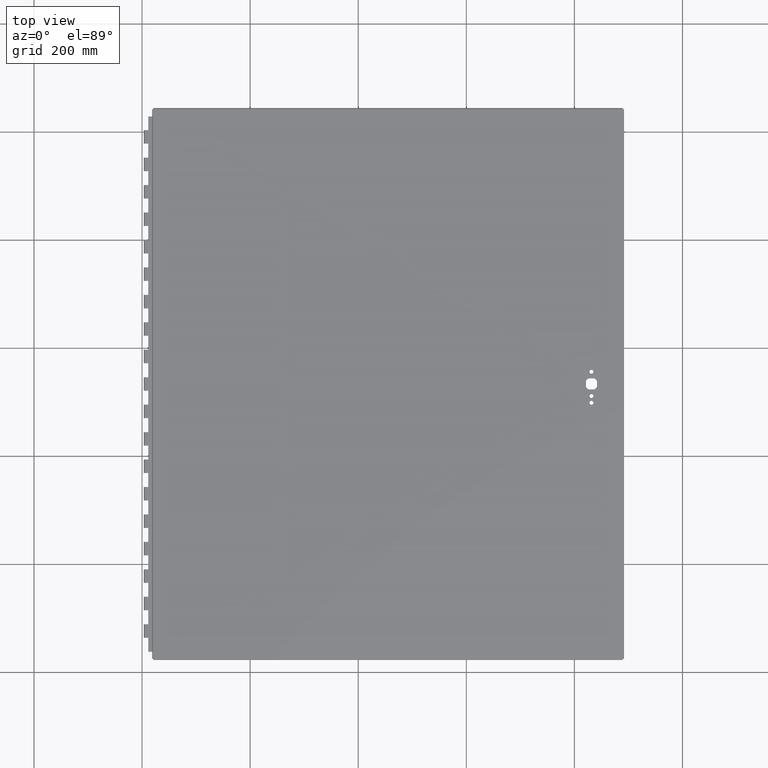
[diagram: clean part render]
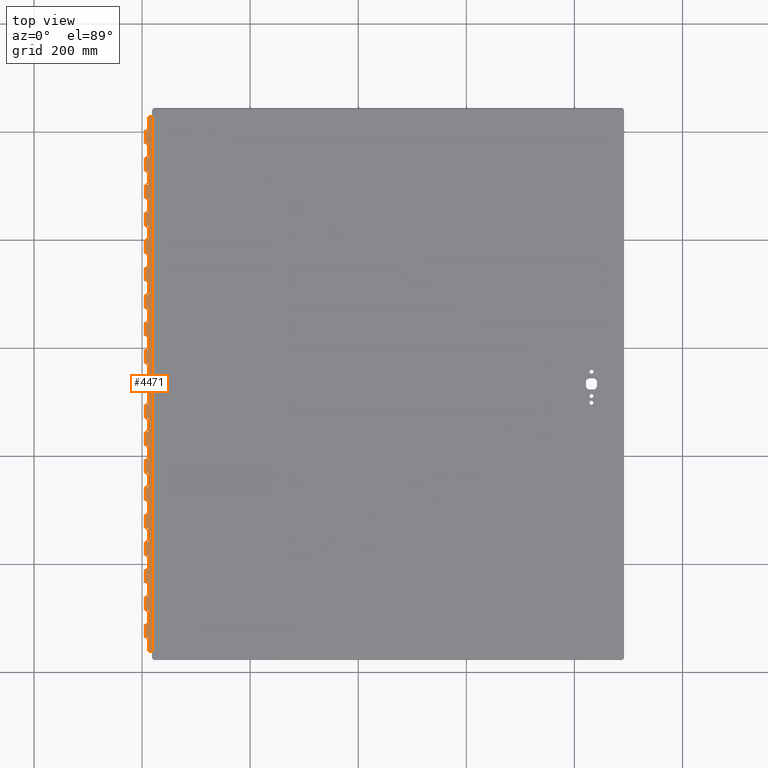
[diagram: same view with one face highlighted and labeled with its STEP entity id]
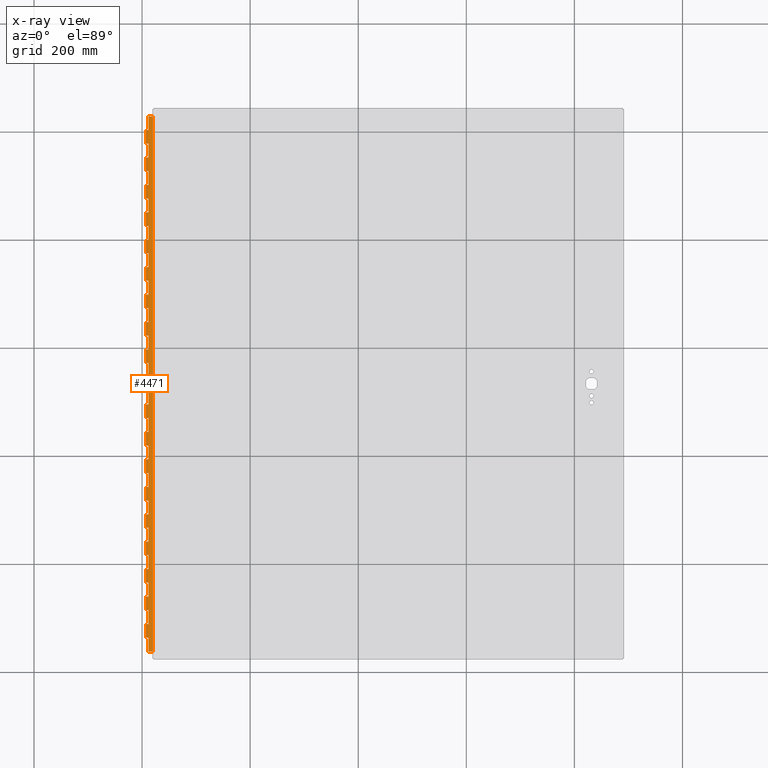
[diagram: x-ray of the same camera — body ghosted, the highlighted face saturated]
A machine part, top view. The second image highlights one B-rep face of the part: STEP entity #4471.
The next image is the same camera in x-ray: the body ghosted, the highlighted face saturated — about 0% of this face is hidden behind the body in this view.
In plain terms, the highlighted planar face has unit normal (0.0872, -0, 0.9962).
Its self-contained STEP definition (entity closure, byte-faithful):
#482=PLANE('',#4898);
#651=FACE_OUTER_BOUND('',#888,.T.);
#888=EDGE_LOOP('',(#3760,#3761,#3762,#3763,#3764,#3765,#3766,#3767,#3768,
#3769,#3770,#3771,#3772,#3773,#3774,#3775,#3776,#3777,#3778,#3779,#3780,
#3781,#3782,#3783,#3784,#3785,#3786,#3787,#3788,#3789,#3790,#3791,#3792,
#3793,#3794,#3795,#3796,#3797,#3798,#3799,#3800,#3801,#3802,#3803,#3804,
#3805,#3806,#3807,#3808,#3809,#3810,#3811,#3812,#3813,#3814,#3815,#3816,
#3817,#3818,#3819,#3820,#3821,#3822,#3823,#3824,#3825,#3826,#3827,#3828,
#3829,#3830,#3831,#3832,#3833,#3834,#3835,#3836,#3837,#3838,#3839));
#1088=LINE('',#6931,#1544);
#1095=LINE('',#6948,#1551);
#1096=LINE('',#6954,#1552);
#1102=LINE('',#6970,#1558);
#1107=LINE('',#6985,#1563);
#1108=LINE('',#6991,#1564);
#1114=LINE('',#7007,#1570);
#1119=LINE('',#7022,#1575);
#1120=LINE('',#7028,#1576);
#1126=LINE('',#7044,#1582);
#1131=LINE('',#7059,#1587);
#1132=LINE('',#7065,#1588);
#1138=LINE('',#7081,#1594);
#1143=LINE('',#7096,#1599);
#1144=LINE('',#7102,#1600);
#1150=LINE('',#7118,#1606);
#1155=LINE('',#7133,#1611);
#1156=LINE('',#7139,#1612);
#1162=LINE('',#7155,#1618);
#1167=LINE('',#7170,#1623);
#1168=LINE('',#7176,#1624);
#1174=LINE('',#7192,#1630);
#1179=LINE('',#7207,#1635);
#1180=LINE('',#7213,#1636);
#1186=LINE('',#7229,#1642);
#1191=LINE('',#7244,#1647);
#1192=LINE('',#7250,#1648);
#1198=LINE('',#7266,#1654);
#1203=LINE('',#7281,#1659);
#1204=LINE('',#7287,#1660);
#1210=LINE('',#7303,#1666);
#1215=LINE('',#7318,#1671);
#1216=LINE('',#7324,#1672);
#1222=LINE('',#7340,#1678);
#1227=LINE('',#7355,#1683);
#1228=LINE('',#7361,#1684);
#1234=LINE('',#7377,#1690);
#1239=LINE('',#7392,#1695);
#1240=LINE('',#7398,#1696);
#1246=LINE('',#7414,#1702);
#1251=LINE('',#7429,#1707);
#1252=LINE('',#7435,#1708);
#1258=LINE('',#7451,#1714);
#1263=LINE('',#7466,#1719);
#1264=LINE('',#7472,#1720);
#1270=LINE('',#7488,#1726);
#1275=LINE('',#7503,#1731);
#1276=LINE('',#7509,#1732);
#1282=LINE('',#7525,#1738);
#1287=LINE('',#7540,#1743);
#1288=LINE('',#7546,#1744);
#1294=LINE('',#7562,#1750);
#1299=LINE('',#7577,#1755);
#1300=LINE('',#7583,#1756);
#1306=LINE('',#7599,#1762);
#1311=LINE('',#7614,#1767);
#1312=LINE('',#7616,#1768);
#1313=LINE('',#7617,#1769);
#1314=LINE('',#7618,#1770);
#1315=LINE('',#7619,#1771);
#1316=LINE('',#7620,#1772);
#1317=LINE('',#7621,#1773);
#1318=LINE('',#7622,#1774);
#1319=LINE('',#7623,#1775);
#1320=LINE('',#7624,#1776);
#1321=LINE('',#7625,#1777);
#1322=LINE('',#7626,#1778);
#1323=LINE('',#7627,#1779);
#1324=LINE('',#7628,#1780);
#1325=LINE('',#7629,#1781);
#1326=LINE('',#7630,#1782);
#1327=LINE('',#7631,#1783);
#1328=LINE('',#7632,#1784);
#1329=LINE('',#7633,#1785);
#1330=LINE('',#7635,#1786);
#1331=LINE('',#7637,#1787);
#1332=LINE('',#7639,#1788);
#1333=LINE('',#7641,#1789);
#1334=LINE('',#7643,#1790);
#1335=LINE('',#7644,#1791);
#1544=VECTOR('',#5289,0.393700787401575);
#1551=VECTOR('',#5302,0.393700787401575);
#1552=VECTOR('',#5307,0.393700787401575);
#1558=VECTOR('',#5319,0.393700787401575);
#1563=VECTOR('',#5332,0.393700787401575);
#1564=VECTOR('',#5337,0.393700787401575);
#1570=VECTOR('',#5349,0.393700787401575);
#1575=VECTOR('',#5362,0.393700787401575);
#1576=VECTOR('',#5367,0.393700787401575);
#1582=VECTOR('',#5379,0.393700787401575);
#1587=VECTOR('',#5392,0.393700787401575);
#1588=VECTOR('',#5397,0.393700787401575);
#1594=VECTOR('',#5409,0.393700787401575);
#1599=VECTOR('',#5422,0.393700787401575);
#1600=VECTOR('',#5427,0.393700787401575);
#1606=VECTOR('',#5439,0.393700787401575);
#1611=VECTOR('',#5452,0.393700787401575);
#1612=VECTOR('',#5457,0.393700787401575);
#1618=VECTOR('',#5469,0.393700787401575);
#1623=VECTOR('',#5482,0.393700787401575);
#1624=VECTOR('',#5487,0.393700787401575);
#1630=VECTOR('',#5499,0.393700787401575);
#1635=VECTOR('',#5512,0.393700787401575);
#1636=VECTOR('',#5517,0.393700787401575);
#1642=VECTOR('',#5529,0.393700787401575);
#1647=VECTOR('',#5542,0.393700787401575);
#1648=VECTOR('',#5547,0.393700787401575);
#1654=VECTOR('',#5559,0.393700787401575);
#1659=VECTOR('',#5572,0.393700787401575);
#1660=VECTOR('',#5577,0.393700787401575);
#1666=VECTOR('',#5589,0.393700787401575);
#1671=VECTOR('',#5602,0.393700787401575);
#1672=VECTOR('',#5607,0.393700787401575);
#1678=VECTOR('',#5619,0.393700787401575);
#1683=VECTOR('',#5632,0.393700787401575);
#1684=VECTOR('',#5637,0.393700787401575);
#1690=VECTOR('',#5649,0.393700787401575);
#1695=VECTOR('',#5662,0.393700787401575);
#1696=VECTOR('',#5667,0.393700787401575);
#1702=VECTOR('',#5679,0.393700787401575);
#1707=VECTOR('',#5692,0.393700787401575);
#1708=VECTOR('',#5697,0.393700787401575);
#1714=VECTOR('',#5709,0.393700787401575);
#1719=VECTOR('',#5722,0.393700787401575);
#1720=VECTOR('',#5727,0.393700787401575);
#1726=VECTOR('',#5739,0.393700787401575);
#1731=VECTOR('',#5752,0.393700787401575);
#1732=VECTOR('',#5757,0.393700787401575);
#1738=VECTOR('',#5769,0.393700787401575);
#1743=VECTOR('',#5782,0.393700787401575);
#1744=VECTOR('',#5787,0.393700787401575);
#1750=VECTOR('',#5799,0.393700787401575);
#1755=VECTOR('',#5812,0.393700787401575);
#1756=VECTOR('',#5817,0.393700787401575);
#1762=VECTOR('',#5829,0.393700787401575);
#1767=VECTOR('',#5842,0.393700787401575);
#1768=VECTOR('',#5845,0.393700787401575);
#1769=VECTOR('',#5846,0.393700787401575);
#1770=VECTOR('',#5847,0.393700787401575);
#1771=VECTOR('',#5848,0.393700787401575);
#1772=VECTOR('',#5849,0.393700787401575);
#1773=VECTOR('',#5850,0.393700787401575);
#1774=VECTOR('',#5851,0.393700787401575);
#1775=VECTOR('',#5852,0.393700787401575);
#1776=VECTOR('',#5853,0.393700787401575);
#1777=VECTOR('',#5854,0.393700787401575);
#1778=VECTOR('',#5855,0.393700787401575);
#1779=VECTOR('',#5856,0.393700787401575);
#1780=VECTOR('',#5857,0.393700787401575);
#1781=VECTOR('',#5858,0.393700787401575);
#1782=VECTOR('',#5859,0.393700787401575);
#1783=VECTOR('',#5860,0.393700787401575);
#1784=VECTOR('',#5861,0.393700787401575);
#1785=VECTOR('',#5862,0.393700787401575);
#1786=VECTOR('',#5863,0.393700787401575);
#1787=VECTOR('',#5864,0.393700787401575);
#1788=VECTOR('',#5865,0.393700787401575);
#1789=VECTOR('',#5866,0.393700787401575);
#1790=VECTOR('',#5867,0.393700787401575);
#1791=VECTOR('',#5868,0.393700787401575);
#2141=VERTEX_POINT('',#6927);
#2143=VERTEX_POINT('',#6930);
#2150=VERTEX_POINT('',#6945);
#2151=VERTEX_POINT('',#6950);
#2153=VERTEX_POINT('',#6953);
#2160=VERTEX_POINT('',#6969);
#2162=VERTEX_POINT('',#6974);
#2167=VERTEX_POINT('',#6987);
#2169=VERTEX_POINT('',#6990);
#2176=VERTEX_POINT('',#7006);
#2178=VERTEX_POINT('',#7011);
#2183=VERTEX_POINT('',#7024);
#2185=VERTEX_POINT('',#7027);
#2192=VERTEX_POINT('',#7043);
#2194=VERTEX_POINT('',#7048);
#2199=VERTEX_POINT('',#7061);
#2201=VERTEX_POINT('',#7064);
#2208=VERTEX_POINT('',#7080);
#2210=VERTEX_POINT('',#7085);
#2215=VERTEX_POINT('',#7098);
#2217=VERTEX_POINT('',#7101);
#2224=VERTEX_POINT('',#7117);
#2226=VERTEX_POINT('',#7122);
#2231=VERTEX_POINT('',#7135);
#2233=VERTEX_POINT('',#7138);
#2240=VERTEX_POINT('',#7154);
#2242=VERTEX_POINT('',#7159);
#2247=VERTEX_POINT('',#7172);
#2249=VERTEX_POINT('',#7175);
#2256=VERTEX_POINT('',#7191);
#2258=VERTEX_POINT('',#7196);
#2263=VERTEX_POINT('',#7209);
#2265=VERTEX_POINT('',#7212);
#2272=VERTEX_POINT('',#7228);
#2274=VERTEX_POINT('',#7233);
#2279=VERTEX_POINT('',#7246);
#2281=VERTEX_POINT('',#7249);
#2288=VERTEX_POINT('',#7265);
#2290=VERTEX_POINT('',#7270);
#2295=VERTEX_POINT('',#7283);
#2297=VERTEX_POINT('',#7286);
#2304=VERTEX_POINT('',#7302);
#2306=VERTEX_POINT('',#7307);
#2311=VERTEX_POINT('',#7320);
#2313=VERTEX_POINT('',#7323);
#2320=VERTEX_POINT('',#7339);
#2322=VERTEX_POINT('',#7344);
#2327=VERTEX_POINT('',#7357);
#2329=VERTEX_POINT('',#7360);
#2336=VERTEX_POINT('',#7376);
#2338=VERTEX_POINT('',#7381);
#2343=VERTEX_POINT('',#7394);
#2345=VERTEX_POINT('',#7397);
#2352=VERTEX_POINT('',#7413);
#2354=VERTEX_POINT('',#7418);
#2359=VERTEX_POINT('',#7431);
#2361=VERTEX_POINT('',#7434);
#2368=VERTEX_POINT('',#7450);
#2370=VERTEX_POINT('',#7455);
#2375=VERTEX_POINT('',#7468);
#2377=VERTEX_POINT('',#7471);
#2384=VERTEX_POINT('',#7487);
#2386=VERTEX_POINT('',#7492);
#2391=VERTEX_POINT('',#7505);
#2393=VERTEX_POINT('',#7508);
#2400=VERTEX_POINT('',#7524);
#2402=VERTEX_POINT('',#7529);
#2407=VERTEX_POINT('',#7542);
#2409=VERTEX_POINT('',#7545);
#2416=VERTEX_POINT('',#7561);
#2418=VERTEX_POINT('',#7566);
#2423=VERTEX_POINT('',#7579);
#2425=VERTEX_POINT('',#7582);
#2432=VERTEX_POINT('',#7598);
#2434=VERTEX_POINT('',#7603);
#2439=VERTEX_POINT('',#7634);
#2440=VERTEX_POINT('',#7636);
#2441=VERTEX_POINT('',#7638);
#2442=VERTEX_POINT('',#7640);
#2443=VERTEX_POINT('',#7642);
#2611=EDGE_CURVE('',#2143,#2141,#1088,.T.);
#2620=EDGE_CURVE('',#2150,#2143,#1095,.T.);
#2622=EDGE_CURVE('',#2153,#2151,#1096,.T.);
#2630=EDGE_CURVE('',#2160,#2153,#1102,.T.);
#2638=EDGE_CURVE('',#2162,#2160,#1107,.T.);
#2640=EDGE_CURVE('',#2169,#2167,#1108,.T.);
#2648=EDGE_CURVE('',#2176,#2169,#1114,.T.);
#2656=EDGE_CURVE('',#2178,#2176,#1119,.T.);
#2658=EDGE_CURVE('',#2185,#2183,#1120,.T.);
#2666=EDGE_CURVE('',#2192,#2185,#1126,.T.);
#2674=EDGE_CURVE('',#2194,#2192,#1131,.T.);
#2676=EDGE_CURVE('',#2201,#2199,#1132,.T.);
#2684=EDGE_CURVE('',#2208,#2201,#1138,.T.);
#2692=EDGE_CURVE('',#2210,#2208,#1143,.T.);
#2694=EDGE_CURVE('',#2217,#2215,#1144,.T.);
#2702=EDGE_CURVE('',#2224,#2217,#1150,.T.);
#2710=EDGE_CURVE('',#2226,#2224,#1155,.T.);
#2712=EDGE_CURVE('',#2233,#2231,#1156,.T.);
#2720=EDGE_CURVE('',#2240,#2233,#1162,.T.);
#2728=EDGE_CURVE('',#2242,#2240,#1167,.T.);
#2730=EDGE_CURVE('',#2249,#2247,#1168,.T.);
#2738=EDGE_CURVE('',#2256,#2249,#1174,.T.);
#2746=EDGE_CURVE('',#2258,#2256,#1179,.T.);
#2748=EDGE_CURVE('',#2265,#2263,#1180,.T.);
#2756=EDGE_CURVE('',#2272,#2265,#1186,.T.);
#2764=EDGE_CURVE('',#2274,#2272,#1191,.T.);
#2766=EDGE_CURVE('',#2281,#2279,#1192,.T.);
#2774=EDGE_CURVE('',#2288,#2281,#1198,.T.);
#2782=EDGE_CURVE('',#2290,#2288,#1203,.T.);
#2784=EDGE_CURVE('',#2297,#2295,#1204,.T.);
#2792=EDGE_CURVE('',#2304,#2297,#1210,.T.);
#2800=EDGE_CURVE('',#2306,#2304,#1215,.T.);
#2802=EDGE_CURVE('',#2313,#2311,#1216,.T.);
#2810=EDGE_CURVE('',#2320,#2313,#1222,.T.);
#2818=EDGE_CURVE('',#2322,#2320,#1227,.T.);
#2820=EDGE_CURVE('',#2329,#2327,#1228,.T.);
#2828=EDGE_CURVE('',#2336,#2329,#1234,.T.);
#2836=EDGE_CURVE('',#2338,#2336,#1239,.T.);
#2838=EDGE_CURVE('',#2345,#2343,#1240,.T.);
#2846=EDGE_CURVE('',#2352,#2345,#1246,.T.);
#2854=EDGE_CURVE('',#2354,#2352,#1251,.T.);
#2856=EDGE_CURVE('',#2361,#2359,#1252,.T.);
#2864=EDGE_CURVE('',#2368,#2361,#1258,.T.);
#2872=EDGE_CURVE('',#2370,#2368,#1263,.T.);
#2874=EDGE_CURVE('',#2377,#2375,#1264,.T.);
#2882=EDGE_CURVE('',#2384,#2377,#1270,.T.);
#2890=EDGE_CURVE('',#2386,#2384,#1275,.T.);
#2892=EDGE_CURVE('',#2393,#2391,#1276,.T.);
#2900=EDGE_CURVE('',#2400,#2393,#1282,.T.);
#2908=EDGE_CURVE('',#2402,#2400,#1287,.T.);
#2910=EDGE_CURVE('',#2409,#2407,#1288,.T.);
#2918=EDGE_CURVE('',#2416,#2409,#1294,.T.);
#2926=EDGE_CURVE('',#2418,#2416,#1299,.T.);
#2928=EDGE_CURVE('',#2425,#2423,#1300,.T.);
#2936=EDGE_CURVE('',#2432,#2425,#1306,.T.);
#2944=EDGE_CURVE('',#2434,#2432,#1311,.T.);
#2945=EDGE_CURVE('',#2141,#2162,#1312,.T.);
#2946=EDGE_CURVE('',#2151,#2178,#1313,.T.);
#2947=EDGE_CURVE('',#2167,#2194,#1314,.T.);
#2948=EDGE_CURVE('',#2183,#2210,#1315,.T.);
#2949=EDGE_CURVE('',#2199,#2226,#1316,.T.);
#2950=EDGE_CURVE('',#2215,#2242,#1317,.T.);
#2951=EDGE_CURVE('',#2231,#2258,#1318,.T.);
#2952=EDGE_CURVE('',#2247,#2274,#1319,.T.);
#2953=EDGE_CURVE('',#2263,#2290,#1320,.T.);
#2954=EDGE_CURVE('',#2279,#2306,#1321,.T.);
#2955=EDGE_CURVE('',#2295,#2322,#1322,.T.);
#2956=EDGE_CURVE('',#2311,#2338,#1323,.T.);
#2957=EDGE_CURVE('',#2327,#2354,#1324,.T.);
#2958=EDGE_CURVE('',#2343,#2370,#1325,.T.);
#2959=EDGE_CURVE('',#2359,#2386,#1326,.T.);
#2960=EDGE_CURVE('',#2375,#2402,#1327,.T.);
#2961=EDGE_CURVE('',#2391,#2418,#1328,.T.);
#2962=EDGE_CURVE('',#2407,#2434,#1329,.T.);
#2963=EDGE_CURVE('',#2423,#2439,#1330,.T.);
#2964=EDGE_CURVE('',#2439,#2440,#1331,.T.);
#2965=EDGE_CURVE('',#2440,#2441,#1332,.T.);
#2966=EDGE_CURVE('',#2441,#2442,#1333,.T.);
#2967=EDGE_CURVE('',#2443,#2442,#1334,.T.);
#2968=EDGE_CURVE('',#2443,#2150,#1335,.T.);
#3760=ORIENTED_EDGE('',*,*,#2620,.T.);
#3761=ORIENTED_EDGE('',*,*,#2611,.T.);
#3762=ORIENTED_EDGE('',*,*,#2945,.T.);
#3763=ORIENTED_EDGE('',*,*,#2638,.T.);
#3764=ORIENTED_EDGE('',*,*,#2630,.T.);
#3765=ORIENTED_EDGE('',*,*,#2622,.T.);
#3766=ORIENTED_EDGE('',*,*,#2946,.T.);
#3767=ORIENTED_EDGE('',*,*,#2656,.T.);
#3768=ORIENTED_EDGE('',*,*,#2648,.T.);
#3769=ORIENTED_EDGE('',*,*,#2640,.T.);
#3770=ORIENTED_EDGE('',*,*,#2947,.T.);
#3771=ORIENTED_EDGE('',*,*,#2674,.T.);
#3772=ORIENTED_EDGE('',*,*,#2666,.T.);
#3773=ORIENTED_EDGE('',*,*,#2658,.T.);
#3774=ORIENTED_EDGE('',*,*,#2948,.T.);
#3775=ORIENTED_EDGE('',*,*,#2692,.T.);
#3776=ORIENTED_EDGE('',*,*,#2684,.T.);
#3777=ORIENTED_EDGE('',*,*,#2676,.T.);
#3778=ORIENTED_EDGE('',*,*,#2949,.T.);
#3779=ORIENTED_EDGE('',*,*,#2710,.T.);
#3780=ORIENTED_EDGE('',*,*,#2702,.T.);
#3781=ORIENTED_EDGE('',*,*,#2694,.T.);
#3782=ORIENTED_EDGE('',*,*,#2950,.T.);
#3783=ORIENTED_EDGE('',*,*,#2728,.T.);
#3784=ORIENTED_EDGE('',*,*,#2720,.T.);
#3785=ORIENTED_EDGE('',*,*,#2712,.T.);
#3786=ORIENTED_EDGE('',*,*,#2951,.T.);
#3787=ORIENTED_EDGE('',*,*,#2746,.T.);
#3788=ORIENTED_EDGE('',*,*,#2738,.T.);
#3789=ORIENTED_EDGE('',*,*,#2730,.T.);
#3790=ORIENTED_EDGE('',*,*,#2952,.T.);
#3791=ORIENTED_EDGE('',*,*,#2764,.T.);
#3792=ORIENTED_EDGE('',*,*,#2756,.T.);
#3793=ORIENTED_EDGE('',*,*,#2748,.T.);
#3794=ORIENTED_EDGE('',*,*,#2953,.T.);
#3795=ORIENTED_EDGE('',*,*,#2782,.T.);
#3796=ORIENTED_EDGE('',*,*,#2774,.T.);
#3797=ORIENTED_EDGE('',*,*,#2766,.T.);
#3798=ORIENTED_EDGE('',*,*,#2954,.T.);
#3799=ORIENTED_EDGE('',*,*,#2800,.T.);
#3800=ORIENTED_EDGE('',*,*,#2792,.T.);
#3801=ORIENTED_EDGE('',*,*,#2784,.T.);
#3802=ORIENTED_EDGE('',*,*,#2955,.T.);
#3803=ORIENTED_EDGE('',*,*,#2818,.T.);
#3804=ORIENTED_EDGE('',*,*,#2810,.T.);
#3805=ORIENTED_EDGE('',*,*,#2802,.T.);
#3806=ORIENTED_EDGE('',*,*,#2956,.T.);
#3807=ORIENTED_EDGE('',*,*,#2836,.T.);
#3808=ORIENTED_EDGE('',*,*,#2828,.T.);
#3809=ORIENTED_EDGE('',*,*,#2820,.T.);
#3810=ORIENTED_EDGE('',*,*,#2957,.T.);
#3811=ORIENTED_EDGE('',*,*,#2854,.T.);
#3812=ORIENTED_EDGE('',*,*,#2846,.T.);
#3813=ORIENTED_EDGE('',*,*,#2838,.T.);
#3814=ORIENTED_EDGE('',*,*,#2958,.T.);
#3815=ORIENTED_EDGE('',*,*,#2872,.T.);
#3816=ORIENTED_EDGE('',*,*,#2864,.T.);
#3817=ORIENTED_EDGE('',*,*,#2856,.T.);
#3818=ORIENTED_EDGE('',*,*,#2959,.T.);
#3819=ORIENTED_EDGE('',*,*,#2890,.T.);
#3820=ORIENTED_EDGE('',*,*,#2882,.T.);
#3821=ORIENTED_EDGE('',*,*,#2874,.T.);
#3822=ORIENTED_EDGE('',*,*,#2960,.T.);
#3823=ORIENTED_EDGE('',*,*,#2908,.T.);
#3824=ORIENTED_EDGE('',*,*,#2900,.T.);
#3825=ORIENTED_EDGE('',*,*,#2892,.T.);
#3826=ORIENTED_EDGE('',*,*,#2961,.T.);
#3827=ORIENTED_EDGE('',*,*,#2926,.T.);
#3828=ORIENTED_EDGE('',*,*,#2918,.T.);
#3829=ORIENTED_EDGE('',*,*,#2910,.T.);
#3830=ORIENTED_EDGE('',*,*,#2962,.T.);
#3831=ORIENTED_EDGE('',*,*,#2944,.T.);
#3832=ORIENTED_EDGE('',*,*,#2936,.T.);
#3833=ORIENTED_EDGE('',*,*,#2928,.T.);
#3834=ORIENTED_EDGE('',*,*,#2963,.T.);
#3835=ORIENTED_EDGE('',*,*,#2964,.T.);
#3836=ORIENTED_EDGE('',*,*,#2965,.T.);
#3837=ORIENTED_EDGE('',*,*,#2966,.T.);
#3838=ORIENTED_EDGE('',*,*,#2967,.F.);
#3839=ORIENTED_EDGE('',*,*,#2968,.T.);
#4471=ADVANCED_FACE('',(#651),#482,.T.);
#4898=AXIS2_PLACEMENT_3D('',#7615,#5843,#5844);
#5289=DIRECTION('',(1.,1.60772500402571E-16,-4.50612437282574E-30));
#5302=DIRECTION('',(0.,0.,1.));
#5307=DIRECTION('',(1.,1.60772500402571E-16,-4.50612437282574E-30));
#5319=DIRECTION('',(0.,0.,1.));
#5332=DIRECTION('',(-1.,-1.60772500402571E-16,4.50612437282575E-30));
#5337=DIRECTION('',(1.,1.60772500402571E-16,-4.50612437282574E-30));
#5349=DIRECTION('',(0.,0.,1.));
#5362=DIRECTION('',(-1.,-1.60772500402571E-16,4.50612437282575E-30));
#5367=DIRECTION('',(1.,1.60772500402571E-16,-4.50612437282574E-30));
#5379=DIRECTION('',(0.,0.,1.));
#5392=DIRECTION('',(-1.,-1.60772500402571E-16,4.50612437282575E-30));
#5397=DIRECTION('',(1.,1.60772500402571E-16,-4.50612437282574E-30));
#5409=DIRECTION('',(0.,0.,1.));
#5422=DIRECTION('',(-1.,-1.60772500402571E-16,4.50612437282575E-30));
#5427=DIRECTION('',(1.,1.60772500402571E-16,-4.50612437282574E-30));
#5439=DIRECTION('',(0.,0.,1.));
#5452=DIRECTION('',(-1.,-1.60772500402571E-16,4.50612437282575E-30));
#5457=DIRECTION('',(1.,1.60772500402571E-16,-4.50612437282574E-30));
#5469=DIRECTION('',(0.,0.,1.));
#5482=DIRECTION('',(-1.,-1.60772500402571E-16,4.50612437282575E-30));
#5487=DIRECTION('',(1.,1.60772500402571E-16,-4.50612437282574E-30));
#5499=DIRECTION('',(0.,0.,1.));
#5512=DIRECTION('',(-1.,-1.60772500402571E-16,4.50612437282575E-30));
#5517=DIRECTION('',(1.,1.60772500402571E-16,-4.50612437282574E-30));
#5529=DIRECTION('',(0.,0.,1.));
#5542=DIRECTION('',(-1.,-1.60772500402571E-16,4.50612437282575E-30));
#5547=DIRECTION('',(1.,1.60772500402571E-16,-4.50612437282574E-30));
#5559=DIRECTION('',(0.,0.,1.));
#5572=DIRECTION('',(-1.,-1.60772500402571E-16,4.50612437282575E-30));
#5577=DIRECTION('',(1.,1.60772500402571E-16,-4.50612437282574E-30));
#5589=DIRECTION('',(0.,0.,1.));
#5602=DIRECTION('',(-1.,-1.60772500402571E-16,4.50612437282575E-30));
#5607=DIRECTION('',(1.,1.60772500402571E-16,-4.50612437282574E-30));
#5619=DIRECTION('',(0.,0.,1.));
#5632=DIRECTION('',(-1.,-1.60772500402571E-16,4.50612437282575E-30));
#5637=DIRECTION('',(1.,1.60772500402571E-16,-4.50612437282574E-30));
#5649=DIRECTION('',(0.,0.,1.));
#5662=DIRECTION('',(-1.,-1.60772500402571E-16,4.50612437282575E-30));
#5667=DIRECTION('',(1.,1.60772500402571E-16,-4.50612437282574E-30));
#5679=DIRECTION('',(0.,0.,1.));
#5692=DIRECTION('',(-1.,-1.60772500402571E-16,4.50612437282575E-30));
#5697=DIRECTION('',(1.,1.60772500402571E-16,-4.50612437282574E-30));
#5709=DIRECTION('',(0.,0.,1.));
#5722=DIRECTION('',(-1.,-1.60772500402571E-16,4.50612437282575E-30));
#5727=DIRECTION('',(1.,1.60772500402571E-16,-4.50612437282574E-30));
#5739=DIRECTION('',(0.,0.,1.));
#5752=DIRECTION('',(-1.,-1.60772500402571E-16,4.50612437282575E-30));
#5757=DIRECTION('',(1.,1.60772500402571E-16,-4.50612437282574E-30));
#5769=DIRECTION('',(0.,0.,1.));
#5782=DIRECTION('',(-1.,-1.60772500402571E-16,4.50612437282575E-30));
#5787=DIRECTION('',(1.,1.60772500402571E-16,-4.50612437282574E-30));
#5799=DIRECTION('',(0.,0.,1.));
#5812=DIRECTION('',(-1.,-1.60772500402571E-16,4.50612437282575E-30));
#5817=DIRECTION('',(1.,1.60772500402571E-16,-4.50612437282574E-30));
#5829=DIRECTION('',(0.,0.,1.));
#5842=DIRECTION('',(-1.,-1.60772500402571E-16,4.50612437282575E-30));
#5843=DIRECTION('center_axis',(1.60772500402571E-16,-1.,0.));
#5844=DIRECTION('ref_axis',(0.,0.,-1.));
#5845=DIRECTION('',(0.,0.,1.));
#5846=DIRECTION('',(0.,0.,1.));
#5847=DIRECTION('',(0.,0.,1.));
#5848=DIRECTION('',(0.,0.,1.));
#5849=DIRECTION('',(0.,0.,1.));
#5850=DIRECTION('',(0.,0.,1.));
#5851=DIRECTION('',(0.,0.,1.));
#5852=DIRECTION('',(0.,0.,1.));
#5853=DIRECTION('',(0.,0.,1.));
#5854=DIRECTION('',(0.,0.,1.));
#5855=DIRECTION('',(0.,0.,1.));
#5856=DIRECTION('',(0.,0.,1.));
#5857=DIRECTION('',(0.,0.,1.));
#5858=DIRECTION('',(0.,0.,1.));
#5859=DIRECTION('',(0.,0.,1.));
#5860=DIRECTION('',(0.,0.,1.));
#5861=DIRECTION('',(0.,0.,1.));
#5862=DIRECTION('',(0.,0.,1.));
#5863=DIRECTION('',(0.,0.,1.));
#5864=DIRECTION('',(-1.,-1.60772500402571E-16,4.50612437282575E-30));
#5865=DIRECTION('',(0.,0.,1.));
#5866=DIRECTION('',(-1.,-1.60772500402571E-16,0.));
#5867=DIRECTION('',(0.,0.,1.));
#5868=DIRECTION('',(1.,1.60772500402571E-16,0.));
#6927=CARTESIAN_POINT('',(0.,-0.125,1.00000000000001));
#6930=CARTESIAN_POINT('',(-0.18,-0.125,1.00000000000001));
#6931=CARTESIAN_POINT('',(2.97816405903437E-17,-0.125,1.00000000000001));
#6945=CARTESIAN_POINT('',(-0.18,-0.125,0.));
#6948=CARTESIAN_POINT('',(-0.18,-0.125,0.500000000000004));
#6950=CARTESIAN_POINT('',(0.,-0.125,3.00000000000001));
#6953=CARTESIAN_POINT('',(-0.18,-0.125,3.00000000000001));
#6954=CARTESIAN_POINT('',(2.93785841135356E-17,-0.125,3.00000000000001));
#6969=CARTESIAN_POINT('',(-0.18,-0.125,1.98000000000001));
#6970=CARTESIAN_POINT('',(-0.18,-0.125,1.5));
#6974=CARTESIAN_POINT('',(0.,-0.125,1.98000000000001));
#6985=CARTESIAN_POINT('',(2.93785841135333E-17,-0.125,1.98000000000001));
#6987=CARTESIAN_POINT('',(0.,-0.125,5.00000000000001));
#6990=CARTESIAN_POINT('',(-0.18,-0.125,5.00000000000001));
#6991=CARTESIAN_POINT('',(2.89755276367275E-17,-0.125,5.00000000000001));
#7006=CARTESIAN_POINT('',(-0.18,-0.125,3.98000000000001));
#7007=CARTESIAN_POINT('',(-0.18,-0.125,2.5));
#7011=CARTESIAN_POINT('',(0.,-0.125,3.98000000000001));
#7022=CARTESIAN_POINT('',(2.89755276367252E-17,-0.125,3.98000000000001));
#7024=CARTESIAN_POINT('',(0.,-0.125,7.00000000000001));
#7027=CARTESIAN_POINT('',(-0.18,-0.125,7.00000000000001));
#7028=CARTESIAN_POINT('',(2.85724711599194E-17,-0.125,7.00000000000001));
#7043=CARTESIAN_POINT('',(-0.18,-0.125,5.98));
#7044=CARTESIAN_POINT('',(-0.18,-0.125,3.5));
#7048=CARTESIAN_POINT('',(0.,-0.125,5.98));
#7059=CARTESIAN_POINT('',(2.85724711599171E-17,-0.125,5.98));
#7061=CARTESIAN_POINT('',(0.,-0.125,9.00000000000001));
#7064=CARTESIAN_POINT('',(-0.18,-0.125,9.00000000000001));
#7065=CARTESIAN_POINT('',(2.81694146831114E-17,-0.125,9.00000000000001));
#7080=CARTESIAN_POINT('',(-0.18,-0.125,7.98));
#7081=CARTESIAN_POINT('',(-0.18,-0.125,4.5));
#7085=CARTESIAN_POINT('',(0.,-0.125,7.98));
#7096=CARTESIAN_POINT('',(2.81694146831091E-17,-0.125,7.98));
#7098=CARTESIAN_POINT('',(0.,-0.125,11.));
#7101=CARTESIAN_POINT('',(-0.18,-0.125,11.));
#7102=CARTESIAN_POINT('',(2.77663582063033E-17,-0.125,11.));
#7117=CARTESIAN_POINT('',(-0.18,-0.125,9.98));
#7118=CARTESIAN_POINT('',(-0.18,-0.125,5.5));
#7122=CARTESIAN_POINT('',(0.,-0.125,9.98));
#7133=CARTESIAN_POINT('',(2.7766358206301E-17,-0.125,9.98));
#7135=CARTESIAN_POINT('',(0.,-0.125,13.));
#7138=CARTESIAN_POINT('',(-0.18,-0.125,13.));
#7139=CARTESIAN_POINT('',(2.73633017294952E-17,-0.125,13.));
#7154=CARTESIAN_POINT('',(-0.18,-0.125,11.98));
#7155=CARTESIAN_POINT('',(-0.18,-0.125,6.5));
#7159=CARTESIAN_POINT('',(0.,-0.125,11.98));
#7170=CARTESIAN_POINT('',(2.73633017294929E-17,-0.125,11.98));
#7172=CARTESIAN_POINT('',(0.,-0.125,15.));
#7175=CARTESIAN_POINT('',(-0.18,-0.125,15.));
#7176=CARTESIAN_POINT('',(2.69602452526871E-17,-0.125,15.));
#7191=CARTESIAN_POINT('',(-0.18,-0.125,13.98));
#7192=CARTESIAN_POINT('',(-0.18,-0.125,7.5));
#7196=CARTESIAN_POINT('',(0.,-0.125,13.98));
#7207=CARTESIAN_POINT('',(2.69602452526848E-17,-0.125,13.98));
#7209=CARTESIAN_POINT('',(0.,-0.125,17.));
#7212=CARTESIAN_POINT('',(-0.18,-0.125,17.));
#7213=CARTESIAN_POINT('',(2.6557188775879E-17,-0.125,17.));
#7228=CARTESIAN_POINT('',(-0.18,-0.125,15.98));
#7229=CARTESIAN_POINT('',(-0.18,-0.125,8.5));
#7233=CARTESIAN_POINT('',(0.,-0.125,15.98));
#7244=CARTESIAN_POINT('',(2.65571887758767E-17,-0.125,15.98));
#7246=CARTESIAN_POINT('',(0.,-0.125,19.));
#7249=CARTESIAN_POINT('',(-0.18,-0.125,19.));
#7250=CARTESIAN_POINT('',(2.6154132299071E-17,-0.125,19.));
#7265=CARTESIAN_POINT('',(-0.18,-0.125,17.98));
#7266=CARTESIAN_POINT('',(-0.18,-0.125,9.5));
#7270=CARTESIAN_POINT('',(0.,-0.125,17.98));
#7281=CARTESIAN_POINT('',(2.61541322990687E-17,-0.125,17.98));
#7283=CARTESIAN_POINT('',(0.,-0.125,21.));
#7286=CARTESIAN_POINT('',(-0.18,-0.125,21.));
#7287=CARTESIAN_POINT('',(2.57510758222629E-17,-0.125,21.));
#7302=CARTESIAN_POINT('',(-0.18,-0.125,19.98));
#7303=CARTESIAN_POINT('',(-0.18,-0.125,10.5));
#7307=CARTESIAN_POINT('',(0.,-0.125,19.98));
#7318=CARTESIAN_POINT('',(2.57510758222606E-17,-0.125,19.98));
#7320=CARTESIAN_POINT('',(0.,-0.125,23.));
#7323=CARTESIAN_POINT('',(-0.18,-0.125,23.));
#7324=CARTESIAN_POINT('',(2.53480193454548E-17,-0.125,23.));
#7339=CARTESIAN_POINT('',(-0.18,-0.125,21.98));
#7340=CARTESIAN_POINT('',(-0.18,-0.125,11.5));
#7344=CARTESIAN_POINT('',(0.,-0.125,21.98));
#7355=CARTESIAN_POINT('',(2.53480193454525E-17,-0.125,21.98));
#7357=CARTESIAN_POINT('',(0.,-0.125,25.));
#7360=CARTESIAN_POINT('',(-0.18,-0.125,25.));
#7361=CARTESIAN_POINT('',(2.49449628686467E-17,-0.125,25.));
#7376=CARTESIAN_POINT('',(-0.18,-0.125,23.98));
#7377=CARTESIAN_POINT('',(-0.18,-0.125,12.5));
#7381=CARTESIAN_POINT('',(0.,-0.125,23.98));
#7392=CARTESIAN_POINT('',(2.49449628686444E-17,-0.125,23.98));
#7394=CARTESIAN_POINT('',(0.,-0.125,27.));
#7397=CARTESIAN_POINT('',(-0.18,-0.125,27.));
#7398=CARTESIAN_POINT('',(2.45419063918387E-17,-0.125,27.));
#7413=CARTESIAN_POINT('',(-0.18,-0.125,25.98));
#7414=CARTESIAN_POINT('',(-0.18,-0.125,13.5));
#7418=CARTESIAN_POINT('',(0.,-0.125,25.98));
#7429=CARTESIAN_POINT('',(2.45419063918364E-17,-0.125,25.98));
#7431=CARTESIAN_POINT('',(0.,-0.125,29.));
#7434=CARTESIAN_POINT('',(-0.18,-0.125,29.));
#7435=CARTESIAN_POINT('',(2.41388499150306E-17,-0.125,29.));
#7450=CARTESIAN_POINT('',(-0.18,-0.125,27.98));
#7451=CARTESIAN_POINT('',(-0.18,-0.125,14.5));
#7455=CARTESIAN_POINT('',(0.,-0.125,27.98));
#7466=CARTESIAN_POINT('',(2.41388499150283E-17,-0.125,27.98));
#7468=CARTESIAN_POINT('',(0.,-0.125,31.));
#7471=CARTESIAN_POINT('',(-0.18,-0.125,31.));
#7472=CARTESIAN_POINT('',(2.37357934382225E-17,-0.125,31.));
#7487=CARTESIAN_POINT('',(-0.18,-0.125,29.98));
#7488=CARTESIAN_POINT('',(-0.18,-0.125,15.5));
#7492=CARTESIAN_POINT('',(0.,-0.125,29.98));
#7503=CARTESIAN_POINT('',(2.37357934382202E-17,-0.125,29.98));
#7505=CARTESIAN_POINT('',(0.,-0.125,33.));
#7508=CARTESIAN_POINT('',(-0.18,-0.125,33.));
#7509=CARTESIAN_POINT('',(2.33327369614144E-17,-0.125,33.));
#7524=CARTESIAN_POINT('',(-0.18,-0.125,31.98));
#7525=CARTESIAN_POINT('',(-0.18,-0.125,16.5));
#7529=CARTESIAN_POINT('',(0.,-0.125,31.98));
#7540=CARTESIAN_POINT('',(2.33327369614121E-17,-0.125,31.98));
#7542=CARTESIAN_POINT('',(0.,-0.125,35.));
#7545=CARTESIAN_POINT('',(-0.18,-0.125,35.));
#7546=CARTESIAN_POINT('',(2.29296804846064E-17,-0.125,35.));
#7561=CARTESIAN_POINT('',(-0.18,-0.125,33.98));
#7562=CARTESIAN_POINT('',(-0.18,-0.125,17.5));
#7566=CARTESIAN_POINT('',(0.,-0.125,33.98));
#7577=CARTESIAN_POINT('',(2.29296804846041E-17,-0.125,33.98));
#7579=CARTESIAN_POINT('',(0.,-0.125,37.));
#7582=CARTESIAN_POINT('',(-0.18,-0.125,37.));
#7583=CARTESIAN_POINT('',(2.25266240077983E-17,-0.125,37.));
#7598=CARTESIAN_POINT('',(-0.18,-0.125,35.98));
#7599=CARTESIAN_POINT('',(-0.18,-0.125,18.5));
#7603=CARTESIAN_POINT('',(0.,-0.125,35.98));
#7614=CARTESIAN_POINT('',(2.2526624007796E-17,-0.125,35.98));
#7615=CARTESIAN_POINT('Origin',(1.53080849893419E-17,-0.125,0.));
#7616=CARTESIAN_POINT('',(1.53080849893419E-17,-0.125,0.));
#7617=CARTESIAN_POINT('',(1.53080849893419E-17,-0.125,0.));
#7618=CARTESIAN_POINT('',(1.53080849893419E-17,-0.125,0.));
#7619=CARTESIAN_POINT('',(1.53080849893419E-17,-0.125,0.));
#7620=CARTESIAN_POINT('',(1.53080849893419E-17,-0.125,0.));
#7621=CARTESIAN_POINT('',(1.53080849893419E-17,-0.125,0.));
#7622=CARTESIAN_POINT('',(1.53080849893419E-17,-0.125,0.));
#7623=CARTESIAN_POINT('',(1.53080849893419E-17,-0.125,0.));
#7624=CARTESIAN_POINT('',(1.53080849893419E-17,-0.125,0.));
#7625=CARTESIAN_POINT('',(1.53080849893419E-17,-0.125,0.));
#7626=CARTESIAN_POINT('',(1.53080849893419E-17,-0.125,0.));
#7627=CARTESIAN_POINT('',(1.53080849893419E-17,-0.125,0.));
#7628=CARTESIAN_POINT('',(1.53080849893419E-17,-0.125,0.));
#7629=CARTESIAN_POINT('',(1.53080849893419E-17,-0.125,0.));
#7630=CARTESIAN_POINT('',(1.53080849893419E-17,-0.125,0.));
#7631=CARTESIAN_POINT('',(1.53080849893419E-17,-0.125,0.));
#7632=CARTESIAN_POINT('',(1.53080849893419E-17,-0.125,0.));
#7633=CARTESIAN_POINT('',(1.53080849893419E-17,-0.125,0.));
#7634=CARTESIAN_POINT('',(0.,-0.125,37.98));
#7635=CARTESIAN_POINT('',(1.53080849893419E-17,-0.125,0.));
#7636=CARTESIAN_POINT('',(-0.18,-0.125,37.98));
#7637=CARTESIAN_POINT('',(2.21235675309879E-17,-0.125,37.98));
#7638=CARTESIAN_POINT('',(-0.18,-0.125,39.));
#7639=CARTESIAN_POINT('',(-0.18,-0.125,19.5));
#7640=CARTESIAN_POINT('',(-0.511005076730884,-0.125,39.));
#7641=CARTESIAN_POINT('',(-0.543744331762962,-0.125,39.));
#7642=CARTESIAN_POINT('',(-0.511005076730884,-0.125,0.));
#7643=CARTESIAN_POINT('',(-0.511005076730884,-0.125,0.));
#7644=CARTESIAN_POINT('',(-0.543744331762962,-0.125,0.));